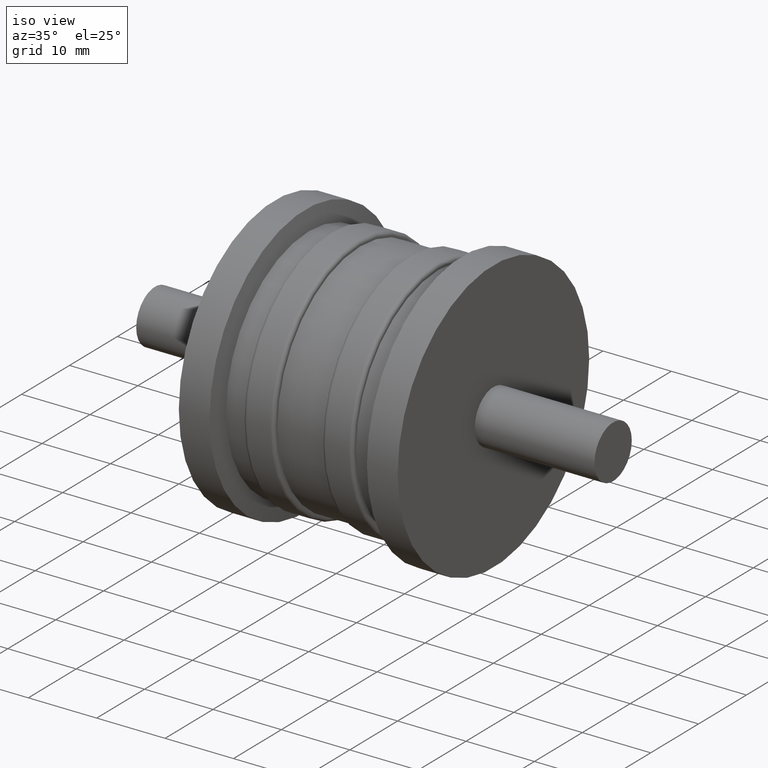
[diagram: clean part render]
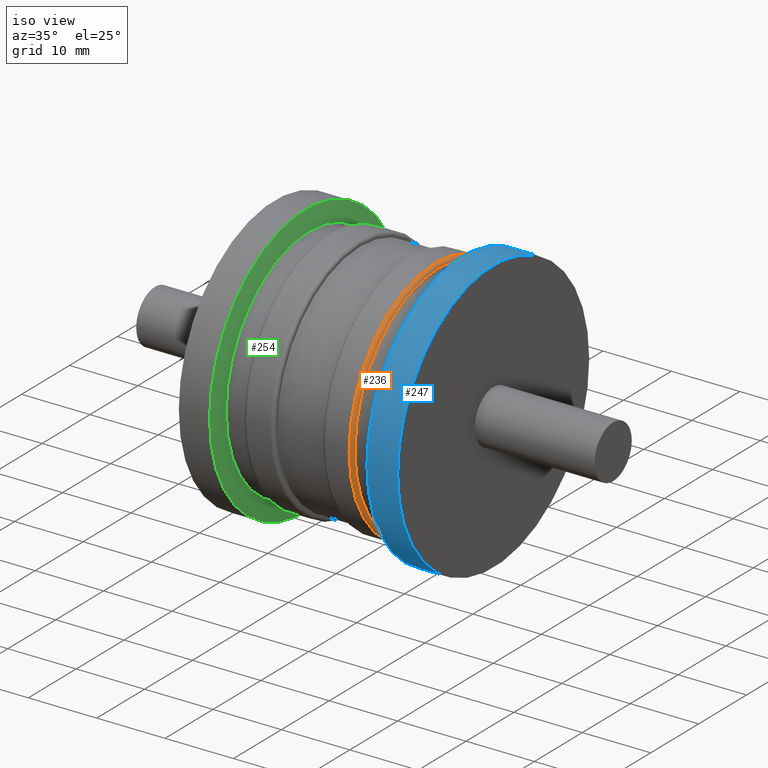
[diagram: same view with three faces highlighted in distinct colors, each labeled with its STEP entity id]
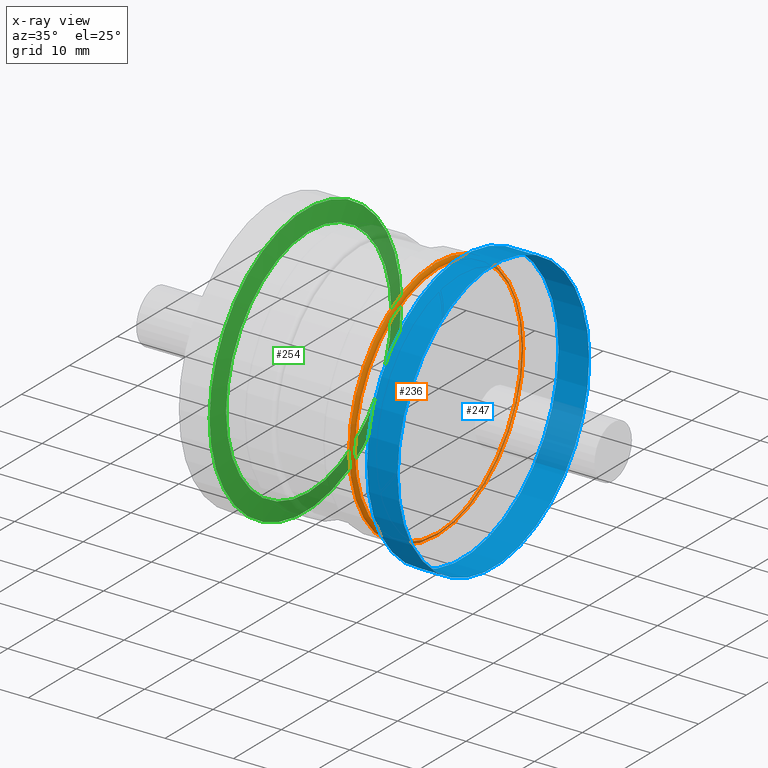
[diagram: x-ray of the same camera — body ghosted, the three highlighted faces saturated]
A machine part, iso view with three faces highlighted in distinct colors.
The next image is the same camera in x-ray (body ghosted, the three faces saturated) — at least one of them is partly hidden behind the body in this view.
Their STEP definitions:

[orange] entity #236 — the highlighted toroidal blend (fillet) surface has major radius 17.5 mm and minor (blend) radius 0.5 mm.
#34=FACE_BOUND('',#79,.T.);
#55=FACE_OUTER_BOUND('',#78,.T.);
#78=EDGE_LOOP('',(#188));
#79=EDGE_LOOP('',(#189));
#122=CIRCLE('',#262,18.);
#123=CIRCLE('',#263,17.5);
#144=VERTEX_POINT('',#400);
#145=VERTEX_POINT('',#402);
#166=EDGE_CURVE('',#144,#144,#122,.T.);
#167=EDGE_CURVE('',#145,#145,#123,.T.);
#188=ORIENTED_EDGE('',*,*,#166,.T.);
#189=ORIENTED_EDGE('',*,*,#167,.T.);
#232=TOROIDAL_SURFACE('',#261,17.5,0.5);
#236=ADVANCED_FACE('',(#55,#34),#232,.T.);
#261=AXIS2_PLACEMENT_3D('',#399,#308,#309);
#262=AXIS2_PLACEMENT_3D('',#401,#310,#311);
#263=AXIS2_PLACEMENT_3D('',#403,#312,#313);
#308=DIRECTION('center_axis',(1.,0.,0.));
#309=DIRECTION('ref_axis',(0.,0.,-1.));
#310=DIRECTION('center_axis',(1.,0.,0.));
#311=DIRECTION('ref_axis',(0.,-1.,1.83697019872103E-16));
#312=DIRECTION('center_axis',(-1.,0.,0.));
#313=DIRECTION('ref_axis',(0.,-1.,1.83697019872103E-16));
#399=CARTESIAN_POINT('Origin',(7.5,0.,0.));
#400=CARTESIAN_POINT('',(7.5,18.,-1.10218211923262E-15));
#401=CARTESIAN_POINT('Origin',(7.5,0.,0.));
#402=CARTESIAN_POINT('',(8.,17.5,-5.35782974626967E-15));
#403=CARTESIAN_POINT('Origin',(8.,0.,0.));

[blue] entity #247 — the highlighted cylindrical surface (bore or boss wall) has radius 20 mm, axis along (1, 0, 0).
#27=CYLINDRICAL_SURFACE('',#286,20.);
#45=FACE_BOUND('',#101,.T.);
#66=FACE_OUTER_BOUND('',#100,.T.);
#100=EDGE_LOOP('',(#210));
#101=EDGE_LOOP('',(#211));
#134=CIRCLE('',#284,20.);
#136=CIRCLE('',#287,20.);
#156=VERTEX_POINT('',#434);
#158=VERTEX_POINT('',#439);
#178=EDGE_CURVE('',#156,#156,#134,.T.);
#180=EDGE_CURVE('',#158,#158,#136,.T.);
#210=ORIENTED_EDGE('',*,*,#178,.F.);
#211=ORIENTED_EDGE('',*,*,#180,.T.);
#247=ADVANCED_FACE('',(#66,#45),#27,.T.);
#284=AXIS2_PLACEMENT_3D('',#435,#354,#355);
#286=AXIS2_PLACEMENT_3D('',#438,#358,#359);
#287=AXIS2_PLACEMENT_3D('',#440,#360,#361);
#354=DIRECTION('center_axis',(1.,0.,0.));
#355=DIRECTION('ref_axis',(0.,0.,-1.));
#358=DIRECTION('center_axis',(1.,0.,0.));
#359=DIRECTION('ref_axis',(0.,1.,0.));
#360=DIRECTION('center_axis',(1.,0.,0.));
#361=DIRECTION('ref_axis',(0.,0.,-1.));
#434=CARTESIAN_POINT('',(16.,20.,0.));
#435=CARTESIAN_POINT('Origin',(16.,0.,0.));
#438=CARTESIAN_POINT('Origin',(13.75,0.,0.));
#439=CARTESIAN_POINT('',(11.5,20.,0.));
#440=CARTESIAN_POINT('Origin',(11.5,0.,0.));

[green] entity #254 — the highlighted conical surface has half-angle 79.695 deg.
#16=CONICAL_SURFACE('',#299,18.625,79.695153531234);
#51=FACE_BOUND('',#114,.T.);
#73=FACE_OUTER_BOUND('',#113,.T.);
#113=EDGE_LOOP('',(#223));
#114=EDGE_LOOP('',(#224));
#141=CIRCLE('',#298,20.);
#142=CIRCLE('',#300,17.25);
#163=VERTEX_POINT('',#455);
#164=VERTEX_POINT('',#458);
#185=EDGE_CURVE('',#163,#163,#141,.T.);
#186=EDGE_CURVE('',#164,#164,#142,.T.);
#223=ORIENTED_EDGE('',*,*,#185,.T.);
#224=ORIENTED_EDGE('',*,*,#186,.F.);
#254=ADVANCED_FACE('',(#73,#51),#16,.T.);
#298=AXIS2_PLACEMENT_3D('',#456,#382,#383);
#299=AXIS2_PLACEMENT_3D('',#457,#384,#385);
#300=AXIS2_PLACEMENT_3D('',#459,#386,#387);
#382=DIRECTION('center_axis',(1.,0.,0.));
#383=DIRECTION('ref_axis',(0.,0.,-1.));
#384=DIRECTION('center_axis',(-1.,0.,0.));
#385=DIRECTION('ref_axis',(0.,1.,0.));
#386=DIRECTION('center_axis',(1.,0.,0.));
#387=DIRECTION('ref_axis',(0.,0.,-1.));
#455=CARTESIAN_POINT('',(-11.5,20.,0.));
#456=CARTESIAN_POINT('Origin',(-11.5,0.,0.));
#457=CARTESIAN_POINT('Origin',(-11.25,0.,0.));
#458=CARTESIAN_POINT('',(-11.,17.25,0.));
#459=CARTESIAN_POINT('Origin',(-11.,0.,0.));